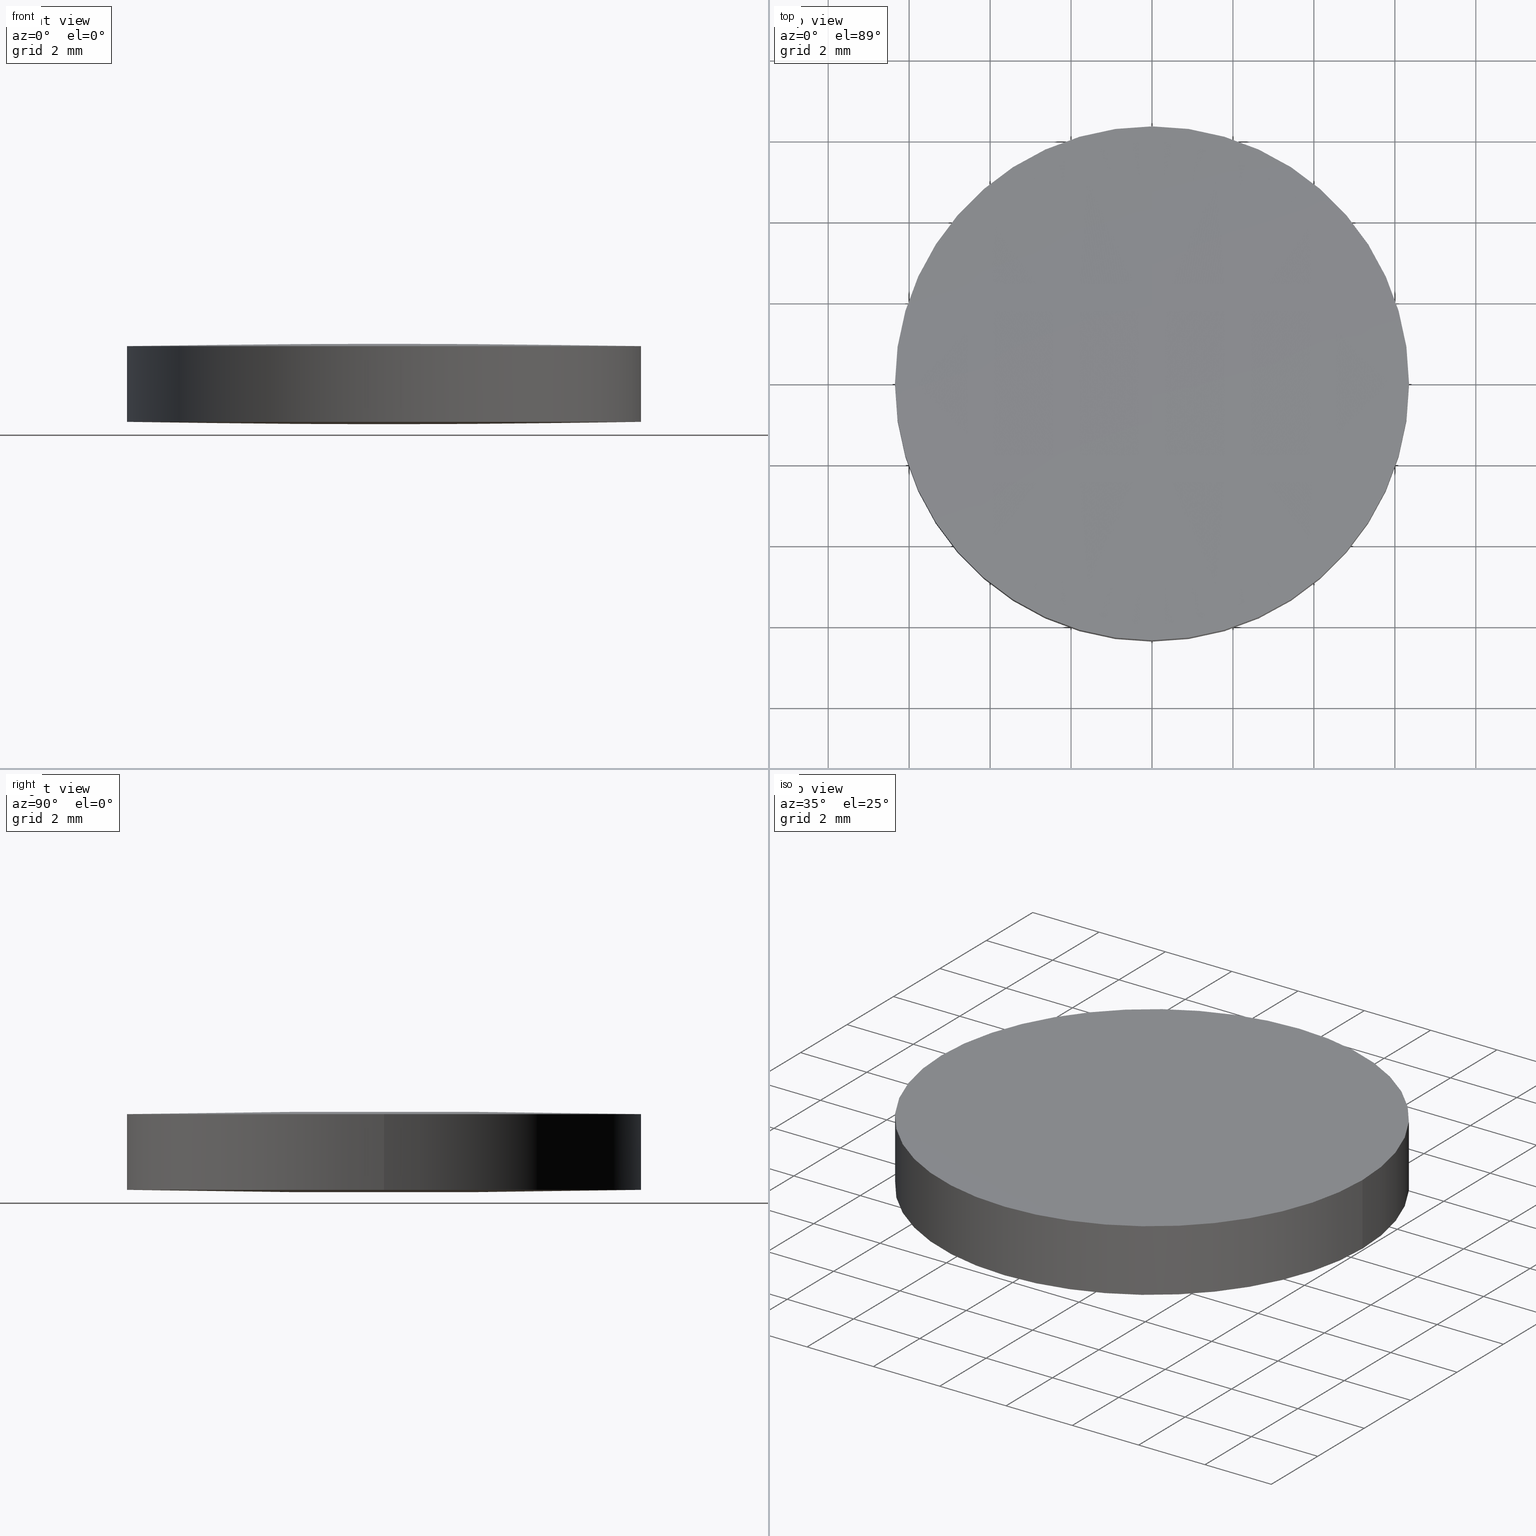
[diagram: canonical four-view strip — front | top / right | iso, engineering-drawing reading convention]
A machine part, canonical four-view strip (front | top / right | iso — engineering-drawing reading convention). The complete STEP part file that produces these views, byte-faithful:
ISO-10303-21;
HEADER;
FILE_DESCRIPTION (( 'STEP AP203' ),
    '1' );
FILE_NAME ('111-0144E BK7 bi-cx 12.7 F300.STEP',
    '2019-01-09T10:55:16',
    ( '' ),
    ( '' ),
    'SwSTEP 2.0',
    'SolidWorks 2017',
    '' );
FILE_SCHEMA (( 'CONFIG_CONTROL_DESIGN' ));
ENDSEC;

DATA;
#1 = PERSON_AND_ORGANIZATION_ROLE ( 'design_owner' ) ;
#2 = CARTESIAN_POINT ( 'NONE',  ( 6.388549635048288000, -2.142368200197927000, 1.956503322797152900 ) ) ;
#3 = DATE_TIME_ROLE ( 'classification_date' ) ;
#4 = EDGE_LOOP ( 'NONE', ( #237, #232, #241 ) ) ;
#5 = CARTESIAN_POINT ( 'NONE',  ( -6.386729902696654200, -6.426189210769681600, 1.867958086700777900 ) ) ;
#6 = ORIENTED_EDGE ( 'NONE', *, *, #123, .T. ) ;
#7 = DIRECTION ( 'NONE',  ( -0.0000000000000000000, -0.0000000000000000000, -1.000000000000000000 ) ) ;
#8 = CARTESIAN_POINT ( 'NONE',  ( 2.129097252843780400, -6.426189210769722500, 0.06642058453948315700 ) ) ;
#9 = DIRECTION ( 'NONE',  ( -0.0000000000000000000, -0.0000000000000000000, -1.000000000000000000 ) ) ;
#10 = CARTESIAN_POINT ( 'NONE',  ( 2.129097252843785300, 6.426189210769622100, 0.06642058453948315700 ) ) ;
#11 = AXIS2_PLACEMENT_3D ( 'NONE', #200, #34, #131 ) ;
#12 = PERSON_AND_ORGANIZATION ( #144, #65 ) ;
#13 = CARTESIAN_POINT ( 'NONE',  ( 2.498001805406600200E-016, 1.221245327087670000E-015, 0.06485478633533430000 ) ) ;
#14 = CARTESIAN_POINT ( 'NONE',  ( 2.498001805406600200E-016, 1.221245327087670000E-015, 0.06485478633533430000 ) ) ;
#15 = APPLICATION_PROTOCOL_DEFINITION ( 'international standard', 'config_control_design', 1994, #280 ) ;
#16 = ORIENTED_EDGE ( 'NONE', *, *, #143, .T. ) ;
#17 = CARTESIAN_POINT ( 'NONE',  ( 1.752070710736575200E-013, 6.426189210769665600, 1.933579415460536800 ) ) ;
#18 =( LENGTH_UNIT ( ) NAMED_UNIT ( * ) SI_UNIT ( .MILLI., .METRE. ) );
#19 = CARTESIAN_POINT ( 'NONE',  ( 4.259295361755651000, 2.142368200197918100, 2.000262570119200100 ) ) ;
#20 = LINE ( 'NONE', #110, #267 ) ;
#21 = SECURITY_CLASSIFICATION_LEVEL ( 'unclassified' ) ;
#22 = APPROVAL_PERSON_ORGANIZATION ( #201, #66, #95 ) ;
#23 = ORIENTED_EDGE ( 'NONE', *, *, #126, .F. ) ;
#24 = ADVANCED_FACE ( 'NONE', ( #59 ), #284, .T. ) ;
#25 = LOCAL_TIME ( 12, 55, 16.00000000000000000, #278 ) ;
#26 = ORIENTED_EDGE ( 'NONE', *, *, #68, .T. ) ;
#27 = CARTESIAN_POINT ( 'NONE',  ( 2.498001805406600200E-016, 1.221245327087670000E-015, 1.935145213664670100 ) ) ;
#28 = AXIS2_PLACEMENT_3D ( 'NONE', #132, #31, #199 ) ;
#29 = CARTESIAN_POINT ( 'NONE',  ( 2.498001805406600200E-016, 1.221245327087670000E-015, 0.06485478633533430000 ) ) ;
#30 = PERSON_AND_ORGANIZATION ( #144, #65 ) ;
#31 = DIRECTION ( 'NONE',  ( -0.0000000000000000000, -0.0000000000000000000, -1.000000000000000000 ) ) ;
#32 = CARTESIAN_POINT ( 'NONE',  ( 6.386729902696659500, 6.426189210769621200, 0.1320419132992240500 ) ) ;
#33 = CARTESIAN_POINT ( 'NONE',  ( 9.805510406251404500E-014, 6.350000000000327400, 1.935145213664669400 ) ) ;
#34 = DIRECTION ( 'NONE',  ( 1.000000000000000000, -3.738639560994800200E-016, -3.230945461933270100E-016 ) ) ;
#35 =( GEOMETRIC_REPRESENTATION_CONTEXT ( 3 ) GLOBAL_UNCERTAINTY_ASSIGNED_CONTEXT ( ( #162 ) ) GLOBAL_UNIT_ASSIGNED_CONTEXT ( ( #18, #209, #67 ) ) REPRESENTATION_CONTEXT ( 'NONE', 'WORKASPACE' ) );
#36 = CARTESIAN_POINT ( 'NONE',  ( -4.259295361755652800, -2.142368200197970900, -0.0002625701191974419600 ) ) ;
#37 = CYLINDRICAL_SURFACE ( 'NONE', #247, 6.349999999999999600 ) ;
#38 = CLOSED_SHELL ( 'NONE', ( #192, #24, #174, #286, #76, #219 ) ) ;
#39 = CARTESIAN_POINT ( 'NONE',  ( -6.388549635048286200, 2.142368200197876800, 0.04349667720284827000 ) ) ;
#40 = DIRECTION ( 'NONE',  ( 1.000000000000000000, 0.0000000000000000000, 0.0000000000000000000 ) ) ;
#41 = CARTESIAN_POINT ( 'NONE',  ( -2.129703883656574700, -2.142368200197971400, -0.02214334864553151400 ) ) ;
#42 = LOCAL_TIME ( 12, 55, 16.00000000000000000, #282 ) ;
#43 = APPROVAL_DATE_TIME ( #236, #118 ) ;
#44 = CARTESIAN_POINT ( 'NONE',  ( 4.258082132148490300, -6.426189210769677200, 1.911704869516373200 ) ) ;
#45 = PERSON_AND_ORGANIZATION_ROLE ( 'classification_officer' ) ;
#46 = PRODUCT_DEFINITION ( 'UNKNOWN', '', #293, #228 ) ;
#47 = ORIENTED_EDGE ( 'NONE', *, *, #216, .T. ) ;
#48 = CIRCLE ( 'NONE', #166, 6.349999999999999600 ) ;
#49 = AXIS2_PLACEMENT_3D ( 'NONE', #27, #134, #157 ) ;
#50 = ORIENTED_EDGE ( 'NONE', *, *, #103, .F. ) ;
#51 = CARTESIAN_POINT ( 'NONE',  ( -6.388549635048087300, 2.142368200197913600, 1.956503322797171500 ) ) ;
#52 = LOCAL_TIME ( 12, 55, 16.00000000000000000, #121 ) ;
#53 = DIRECTION ( 'NONE',  ( 0.0000000000000000000, 0.0000000000000000000, 1.000000000000000000 ) ) ;
#54 = ORIENTED_EDGE ( 'NONE', *, *, #123, .F. ) ;
#55 = CARTESIAN_POINT ( 'NONE',  ( 2.129703883656321600, -2.142368200197973600, -0.02214334864551471100 ) ) ;
#56 = DIRECTION ( 'NONE',  ( 1.000000000000000000, 8.881784197001252300E-016, 0.0000000000000000000 ) ) ;
#57 = DIRECTION ( 'NONE',  ( 0.0000000000000000000, 0.0000000000000000000, 1.000000000000000000 ) ) ;
#58 = CARTESIAN_POINT ( 'NONE',  ( 0.0000000000000000000, -5.684341886080800200E-014, -308.9000000000000300 ) ) ;
#59 = FACE_OUTER_BOUND ( 'NONE', #72, .T. ) ;
#60 = EDGE_CURVE ( 'NONE', #77, #148, #117, .T. ) ;
#61 = CARTESIAN_POINT ( 'NONE',  ( -9.805510406251405700E-014, 6.350000000000327400, 0.06485478633533377200 ) ) ;
#62 = CARTESIAN_POINT ( 'NONE',  ( 6.388549635048286200, 2.142368200197918500, 1.956503322797154200 ) ) ;
#63 = CARTESIAN_POINT ( 'NONE',  ( -1.760744328116458900E-013, 2.142368200197874600, -0.02214334864553297100 ) ) ;
#64 = CARTESIAN_POINT ( 'NONE',  ( 2.129097252844037900, -6.426189210769678100, 1.933579415460535500 ) ) ;
#65 = ORGANIZATION ( 'UNSPECIFIED', 'UNSPECIFIED', '' ) ;
#66 = APPROVAL ( #119, 'UNSPECIFIED' ) ;
#67 =( NAMED_UNIT ( * ) SI_UNIT ( $, .STERADIAN. ) SOLID_ANGLE_UNIT ( ) );
#68 = EDGE_CURVE ( 'NONE', #257, #101, #226, .T. ) ;
#69 = VERTEX_POINT ( 'NONE', #227 ) ;
#70 = APPROVAL ( #188, 'UNSPECIFIED' ) ;
#71 = DATE_AND_TIME ( #266, #25 ) ;
#72 = EDGE_LOOP ( 'NONE', ( #73, #254, #50 ) ) ;
#73 = ORIENTED_EDGE ( 'NONE', *, *, #143, .F. ) ;
#74 = AXIS2_PLACEMENT_3D ( 'NONE', #291, #9, #56 ) ;
#75 = EDGE_CURVE ( 'NONE', #148, #69, #172, .T. ) ;
#76 = ADVANCED_FACE ( 'NONE', ( #89 ), #37, .T. ) ;
#77 = VERTEX_POINT ( 'NONE', #33 ) ;
#78 = CC_DESIGN_SECURITY_CLASSIFICATION ( #204, ( #293 ) ) ;
#79 = CARTESIAN_POINT ( 'NONE',  ( 2.498001805406600200E-016, 1.221245327087670000E-015, 1.935145213664670100 ) ) ;
#80 = CARTESIAN_POINT ( 'NONE',  ( 2.498001805406600200E-016, 1.221245327087670000E-015, 1.935145213664670100 ) ) ;
#81 = EDGE_CURVE ( 'NONE', #257, #290, #135, .T. ) ;
#82 = DIRECTION ( 'NONE',  ( 1.000000000000000000, 0.0000000000000000000, 0.0000000000000000000 ) ) ;
#83 = CC_DESIGN_PERSON_AND_ORGANIZATION_ASSIGNMENT ( #94, #242, ( #46 ) ) ;
#84 = DIRECTION ( 'NONE',  ( 0.0000000000000000000, 0.0000000000000000000, 1.000000000000000000 ) ) ;
#85 = DATE_AND_TIME ( #146, #42 ) ;
#86 = EDGE_LOOP ( 'NONE', ( #180, #159, #125 ) ) ;
#87 = CARTESIAN_POINT ( 'NONE',  ( -4.258082132148490300, -6.426189210769719800, 0.08829513048362869200 ) ) ;
#88 = FACE_OUTER_BOUND ( 'NONE', #263, .T. ) ;
#89 = FACE_OUTER_BOUND ( 'NONE', #106, .T. ) ;
#90 = PRODUCT_RELATED_PRODUCT_CATEGORY ( 'detail', '', ( #238 ) ) ;
#91 = APPROVAL_STATUS ( 'not_yet_approved' ) ;
#92 = EDGE_CURVE ( 'NONE', #69, #77, #273, .T. ) ;
#93 = APPLICATION_CONTEXT ( 'configuration controlled 3d designs of mechanical parts and assemblies' ) ;
#94 = PERSON_AND_ORGANIZATION ( #144, #65 ) ;
#95 = APPROVAL_ROLE ( '' ) ;
#96 = APPROVAL_ROLE ( '' ) ;
#97 = PERSON_AND_ORGANIZATION ( #144, #65 ) ;
#98 = AXIS2_PLACEMENT_3D ( 'NONE', #80, #108, #274 ) ;
#99 = CARTESIAN_POINT ( 'NONE',  ( -4.259295361755425400, -2.142368200197931400, 2.000262570119215600 ) ) ;
#100 = CIRCLE ( 'NONE', #283, 6.349999999999999600 ) ;
#101 = VERTEX_POINT ( 'NONE', #61 ) ;
#102 = CARTESIAN_POINT ( 'NONE',  ( -2.129703883656322900, 2.142368200197915400, 2.022143348645517600 ) ) ;
#103 = EDGE_CURVE ( 'NONE', #290, #77, #48, .T. ) ;
#104 = DIRECTION ( 'NONE',  ( -0.0000000000000000000, -0.0000000000000000000, -1.000000000000000000 ) ) ;
#105 = PERSON_AND_ORGANIZATION ( #144, #65 ) ;
#106 = EDGE_LOOP ( 'NONE', ( #164, #154, #173, #6, #196, #16 ) ) ;
#107 = CARTESIAN_POINT ( 'NONE',  ( 6.386729902696655100, -6.426189210769724300, 0.1320419132992240500 ) ) ;
#108 = DIRECTION ( 'NONE',  ( -0.0000000000000000000, -0.0000000000000000000, -1.000000000000000000 ) ) ;
#109 = CARTESIAN_POINT ( 'NONE',  ( -1.012582030574349200E-013, -2.142368200197972300, -0.02214334864551402400 ) ) ;
#110 = CARTESIAN_POINT ( 'NONE',  ( 6.349999999999999600, 1.221245327087670000E-015, 0.06485478633533430000 ) ) ;
#111 = CIRCLE ( 'NONE', #49, 6.349999999999999600 ) ;
#112 = CARTESIAN_POINT ( 'NONE',  ( -1.778091562876227300E-013, -2.142368200197971800, -0.02214334864553272800 ) ) ;
#113 = DIRECTION ( 'NONE',  ( 1.000000000000000000, 0.0000000000000000000, 0.0000000000000000000 ) ) ;
#114 = CARTESIAN_POINT ( 'NONE',  ( -6.349999999999999600, 1.998896044546239400E-015, 0.06485478633533430000 ) ) ;
#115 = AXIS2_PLACEMENT_3D ( 'NONE', #58, #176, #289 ) ;
#116 = CARTESIAN_POINT ( 'NONE',  ( -6.349999999999999600, 1.998896044546239400E-015, 1.935145213664670100 ) ) ;
#117 = CIRCLE ( 'NONE', #98, 6.349999999999999600 ) ;
#118 = APPROVAL ( #91, 'UNSPECIFIED' ) ;
#119 = APPROVAL_STATUS ( 'not_yet_approved' ) ;
#120 = PERSON_AND_ORGANIZATION ( #144, #65 ) ;
#121 = COORDINATED_UNIVERSAL_TIME_OFFSET ( 2, 0, .AHEAD. ) ;
#122 = ORIENTED_EDGE ( 'NONE', *, *, #103, .T. ) ;
#123 = EDGE_CURVE ( 'NONE', #294, #148, #20, .T. ) ;
#124 = CC_DESIGN_PERSON_AND_ORGANIZATION_ASSIGNMENT ( #120, #240, ( #293 ) ) ;
#125 = ORIENTED_EDGE ( 'NONE', *, *, #60, .F. ) ;
#126 = EDGE_CURVE ( 'NONE', #101, #294, #150, .T. ) ;
#127 = ADVANCED_BREP_SHAPE_REPRESENTATION ( '111-0144E BK7 bi-cx 12.7 F300', ( #141, #210 ), #35 ) ;
#128 = CARTESIAN_POINT ( 'NONE',  ( -6.388549635048085500, -2.142368200197931800, 1.956503322797170200 ) ) ;
#129 = CIRCLE ( 'NONE', #272, 6.349999999999999600 ) ;
#130 = CARTESIAN_POINT ( 'NONE',  ( 1.012582030574349000E-013, -2.142368200197929600, 2.022143348645515800 ) ) ;
#131 = DIRECTION ( 'NONE',  ( -3.738639560994798700E-016, -1.000000000000000000, 3.570997184384549400E-016 ) ) ;
#132 = CARTESIAN_POINT ( 'NONE',  ( 2.498001805406600200E-016, 1.221245327087670000E-015, 1.935145213664670100 ) ) ;
#133 = CARTESIAN_POINT ( 'NONE',  ( 6.388549635048088100, 2.142368200197871900, 0.04349667720283109000 ) ) ;
#134 = DIRECTION ( 'NONE',  ( -0.0000000000000000000, -0.0000000000000000000, -1.000000000000000000 ) ) ;
#135 = LINE ( 'NONE', #252, #218 ) ;
#136 = DIRECTION ( 'NONE',  ( 1.000000000000000000, -1.776356839400250500E-015, 0.0000000000000000000 ) ) ;
#137 = CARTESIAN_POINT ( 'NONE',  ( -2.129703883656572900, 2.142368200197875900, -0.02214334864553175700 ) ) ;
#138 = CC_DESIGN_APPROVAL ( #66, ( #204 ) ) ;
#139 = CC_DESIGN_PERSON_AND_ORGANIZATION_ASSIGNMENT ( #12, #45, ( #204 ) ) ;
#140 = MECHANICAL_CONTEXT ( 'NONE', #280, 'mechanical' ) ;
#141 = MANIFOLD_SOLID_BREP ( 'Imported1', #38 ) ;
#142 = CARTESIAN_POINT ( 'NONE',  ( 6.386729902696855800, 6.426189210769668300, 1.867958086700760600 ) ) ;
#143 = EDGE_CURVE ( 'NONE', #69, #290, #111, .T. ) ;
#144 = PERSON ( 'UNSPECIFIED', 'UNSPECIFIED', 'UNSPECIFIED', ('UNSPECIFIED'), ('UNSPECIFIED'), ('UNSPECIFIED') ) ;
#145 = CARTESIAN_POINT ( 'NONE',  ( 2.129097252844032600, 6.426189210769665600, 1.933579415460535500 ) ) ;
#146 = CALENDAR_DATE ( 2019, 9, 1 ) ;
#147 =( BOUNDED_SURFACE ( )  B_SPLINE_SURFACE ( 3, 3, ( 
 ( #269, #8, #205, #107 ),
 ( #109, #55, #225, #178 ),
 ( #251, #270, #229, #133 ),
 ( #292, #10, #177, #32 ) ),
 .UNSPECIFIED., .F., .F., .F. ) 
 B_SPLINE_SURFACE_WITH_KNOTS ( ( 4, 4 ),
 ( 4, 4 ),
 ( 0.0000000000000000000, 1.000000000000000000 ),
 ( 0.0000000000000000000, 1.000000000000000000 ),
 .UNSPECIFIED. ) 
 GEOMETRIC_REPRESENTATION_ITEM ( )  RATIONAL_B_SPLINE_SURFACE ( (
 ( 1.000000000000000000, 0.9999648134002164800, 0.9999648134002164800, 1.000000000000000000),
 ( 0.9998575735294530400, 0.9998223919411727300, 0.9998223919411727300, 0.9998575735294530400),
 ( 0.9998575735294530400, 0.9998223919411727300, 0.9998223919411727300, 0.9998575735294530400),
 ( 1.000000000000000000, 0.9999648134002164800, 0.9999648134002164800, 1.000000000000000000) ) ) 
 REPRESENTATION_ITEM ( '' )  SURFACE ( )  );
#148 = VERTEX_POINT ( 'NONE', #179 ) ;
#149 = CC_DESIGN_PERSON_AND_ORGANIZATION_ASSIGNMENT ( #212, #1, ( #238 ) ) ;
#150 = CIRCLE ( 'NONE', #287, 6.349999999999999600 ) ;
#151 = CARTESIAN_POINT ( 'NONE',  ( 1.028311548038678000E-013, -6.426189210769679000, 1.933579415460517900 ) ) ;
#152 = CC_DESIGN_DATE_AND_TIME_ASSIGNMENT ( #71, #262, ( #46 ) ) ;
#153 = CALENDAR_DATE ( 2019, 9, 1 ) ;
#154 = ORIENTED_EDGE ( 'NONE', *, *, #216, .F. ) ;
#155 = CARTESIAN_POINT ( 'NONE',  ( -6.386729902696659500, 6.426189210769663000, 1.867958086700777900 ) ) ;
#156 = CC_DESIGN_DATE_AND_TIME_ASSIGNMENT ( #85, #3, ( #204 ) ) ;
#157 = DIRECTION ( 'NONE',  ( 1.000000000000000000, 0.0000000000000000000, 0.0000000000000000000 ) ) ;
#158 = EDGE_CURVE ( 'NONE', #189, #101, #193, .T. ) ;
#159 = ORIENTED_EDGE ( 'NONE', *, *, #75, .F. ) ;
#160 = CARTESIAN_POINT ( 'NONE',  ( -2.129097252844037100, -6.426189210769720700, 0.06642058453946635100 ) ) ;
#161 = CARTESIAN_POINT ( 'NONE',  ( 1.760744328116458900E-013, 2.142368200197916300, 2.022143348645535800 ) ) ;
#162 = UNCERTAINTY_MEASURE_WITH_UNIT (LENGTH_MEASURE( 1.000000000000000100E-005 ), #18, 'distance_accuracy_value', 'NONE');
#163 = APPLICATION_PROTOCOL_DEFINITION ( 'international standard', 'config_control_design', 1994, #93 ) ;
#164 = ORIENTED_EDGE ( 'NONE', *, *, #81, .F. ) ;
#165 = CC_DESIGN_PERSON_AND_ORGANIZATION_ASSIGNMENT ( #105, #261, ( #293 ) ) ;
#166 = AXIS2_PLACEMENT_3D ( 'NONE', #79, #276, #197 ) ;
#167 =( BOUNDED_SURFACE ( )  B_SPLINE_SURFACE ( 3, 3, ( 
 ( #277, #87, #160, #259 ),
 ( #183, #36, #41, #112 ),
 ( #39, #235, #137, #63 ),
 ( #208, #182, #187, #258 ) ),
 .UNSPECIFIED., .F., .F., .F. ) 
 B_SPLINE_SURFACE_WITH_KNOTS ( ( 4, 4 ),
 ( 4, 4 ),
 ( 0.0000000000000000000, 1.000000000000000000 ),
 ( 0.0000000000000000000, 1.000000000000000000 ),
 .UNSPECIFIED. ) 
 GEOMETRIC_REPRESENTATION_ITEM ( )  RATIONAL_B_SPLINE_SURFACE ( (
 ( 1.000000000000000000, 0.9999648134002164800, 0.9999648134002164800, 1.000000000000000000),
 ( 0.9998575735294530400, 0.9998223919411727300, 0.9998223919411727300, 0.9998575735294530400),
 ( 0.9998575735294530400, 0.9998223919411727300, 0.9998223919411727300, 0.9998575735294530400),
 ( 1.000000000000000000, 0.9999648134002164800, 0.9999648134002164800, 1.000000000000000000) ) ) 
 REPRESENTATION_ITEM ( '' )  SURFACE ( )  );
#168 = APPROVAL_DATE_TIME ( #175, #70 ) ;
#169 = CC_DESIGN_APPROVAL ( #118, ( #46 ) ) ;
#170 =( BOUNDED_SURFACE ( )  B_SPLINE_SURFACE ( 3, 3, ( 
 ( #203, #44, #64, #207 ),
 ( #2, #279, #211, #234 ),
 ( #62, #19, #239, #161 ),
 ( #142, #260, #145, #17 ) ),
 .UNSPECIFIED., .F., .F., .T. ) 
 B_SPLINE_SURFACE_WITH_KNOTS ( ( 4, 4 ),
 ( 4, 4 ),
 ( 0.0000000000000000000, 1.000000000000000000 ),
 ( 0.0000000000000000000, 1.000000000000000000 ),
 .UNSPECIFIED. ) 
 GEOMETRIC_REPRESENTATION_ITEM ( )  RATIONAL_B_SPLINE_SURFACE ( (
 ( 1.000000000000000000, 0.9999648134002164800, 0.9999648134002164800, 1.000000000000000000),
 ( 0.9998575735294530400, 0.9998223919411727300, 0.9998223919411727300, 0.9998575735294530400),
 ( 0.9998575735294530400, 0.9998223919411727300, 0.9998223919411727300, 0.9998575735294530400),
 ( 1.000000000000000000, 0.9999648134002164800, 0.9999648134002164800, 1.000000000000000000) ) ) 
 REPRESENTATION_ITEM ( '' )  SURFACE ( )  );
#171 = SHAPE_DEFINITION_REPRESENTATION ( #198, #127 ) ;
#172 = CIRCLE ( 'NONE', #28, 6.349999999999999600 ) ;
#173 = ORIENTED_EDGE ( 'NONE', *, *, #190, .F. ) ;
#174 = ADVANCED_FACE ( 'NONE', ( #213 ), #202, .T. ) ;
#175 = DATE_AND_TIME ( #153, #195 ) ;
#176 = DIRECTION ( 'NONE',  ( -1.000000000000000000, -3.738639560994800200E-016, 3.230945461933270100E-016 ) ) ;
#177 = CARTESIAN_POINT ( 'NONE',  ( 4.258082132148264700, 6.426189210769621200, 0.08829513048361237200 ) ) ;
#178 = CARTESIAN_POINT ( 'NONE',  ( 6.388549635048086400, -2.142368200197974500, 0.04349667720283131900 ) ) ;
#179 = CARTESIAN_POINT ( 'NONE',  ( 6.349999999999999600, 1.221245327087670000E-015, 1.935145213664670100 ) ) ;
#180 = ORIENTED_EDGE ( 'NONE', *, *, #92, .F. ) ;
#181 = ORIENTED_EDGE ( 'NONE', *, *, #158, .F. ) ;
#182 = CARTESIAN_POINT ( 'NONE',  ( -4.258082132148485900, 6.426189210769624800, 0.08829513048362869200 ) ) ;
#183 = CARTESIAN_POINT ( 'NONE',  ( -6.388549635048288000, -2.142368200197969600, 0.04349667720284848500 ) ) ;
#184 = COORDINATED_UNIVERSAL_TIME_OFFSET ( 2, 0, .AHEAD. ) ;
#185 = ORIENTED_EDGE ( 'NONE', *, *, #68, .F. ) ;
#186 = CARTESIAN_POINT ( 'NONE',  ( 2.498001805406600200E-016, 1.221245327087670000E-015, 0.06485478633533430000 ) ) ;
#187 = CARTESIAN_POINT ( 'NONE',  ( -2.129097252844031700, 6.426189210769623900, 0.06642058453946633700 ) ) ;
#188 = APPROVAL_STATUS ( 'not_yet_approved' ) ;
#189 = VERTEX_POINT ( 'NONE', #275 ) ;
#190 = EDGE_CURVE ( 'NONE', #294, #189, #100, .T. ) ;
#191 = APPROVAL_ROLE ( '' ) ;
#192 = ADVANCED_FACE ( 'NONE', ( #231 ), #147, .T. ) ;
#193 = CIRCLE ( 'NONE', #11, 310.9000000000000300 ) ;
#194 = CARTESIAN_POINT ( 'NONE',  ( 9.802611376190352000E-014, 6.426189210769665600, 1.933579415460517900 ) ) ;
#195 = LOCAL_TIME ( 12, 55, 16.00000000000000000, #184 ) ;
#196 = ORIENTED_EDGE ( 'NONE', *, *, #75, .T. ) ;
#197 = DIRECTION ( 'NONE',  ( 1.000000000000000000, 0.0000000000000000000, 0.0000000000000000000 ) ) ;
#198 = PRODUCT_DEFINITION_SHAPE ( 'NONE', 'NONE',  #46 ) ;
#199 = DIRECTION ( 'NONE',  ( 1.000000000000000000, 0.0000000000000000000, 0.0000000000000000000 ) ) ;
#200 = CARTESIAN_POINT ( 'NONE',  ( 0.0000000000000000000, -5.684341886080800200E-014, 310.9000000000000300 ) ) ;
#201 = PERSON_AND_ORGANIZATION ( #144, #65 ) ;
#202 = CYLINDRICAL_SURFACE ( 'NONE', #265, 6.349999999999999600 ) ;
#203 = CARTESIAN_POINT ( 'NONE',  ( 6.386729902696860300, -6.426189210769676300, 1.867958086700760600 ) ) ;
#204 = SECURITY_CLASSIFICATION ( '', '', #21 ) ;
#205 = CARTESIAN_POINT ( 'NONE',  ( 4.258082132148259400, -6.426189210769723400, 0.08829513048361237200 ) ) ;
#206 = COORDINATED_UNIVERSAL_TIME_OFFSET ( 2, 0, .AHEAD. ) ;
#207 = CARTESIAN_POINT ( 'NONE',  ( 1.804112415015879400E-013, -6.426189210769679000, 1.933579415460536800 ) ) ;
#208 = CARTESIAN_POINT ( 'NONE',  ( -6.386729902696855800, 6.426189210769626600, 0.1320419132992412000 ) ) ;
#209 =( NAMED_UNIT ( * ) PLANE_ANGLE_UNIT ( ) SI_UNIT ( $, .RADIAN. ) );
#210 = AXIS2_PLACEMENT_3D ( 'NONE', #233, #84, #113 ) ;
#211 = CARTESIAN_POINT ( 'NONE',  ( 2.129703883656574700, -2.142368200197928700, 2.022143348645532700 ) ) ;
#212 = PERSON_AND_ORGANIZATION ( #144, #65 ) ;
#213 = FACE_OUTER_BOUND ( 'NONE', #244, .T. ) ;
#214 = APPROVAL_PERSON_ORGANIZATION ( #97, #70, #96 ) ;
#215 = CC_DESIGN_APPROVAL ( #70, ( #293 ) ) ;
#216 = EDGE_CURVE ( 'NONE', #189, #257, #129, .T. ) ;
#217 = DATE_AND_TIME ( #224, #256 ) ;
#218 = VECTOR ( 'NONE', #230, 1000.000000000000000 ) ;
#219 = ADVANCED_FACE ( 'NONE', ( #281 ), #170, .T. ) ;
#220 = CARTESIAN_POINT ( 'NONE',  ( -2.129703883656321600, -2.142368200197930900, 2.022143348645516300 ) ) ;
#221 = CARTESIAN_POINT ( 'NONE',  ( -4.258082132148264700, 6.426189210769663000, 1.911704869516389600 ) ) ;
#222 = CARTESIAN_POINT ( 'NONE',  ( -2.129097252843785300, 6.426189210769663900, 1.933579415460518600 ) ) ;
#223 = DIRECTION ( 'NONE',  ( 1.000000000000000000, 0.0000000000000000000, 0.0000000000000000000 ) ) ;
#224 = CALENDAR_DATE ( 2019, 9, 1 ) ;
#225 = CARTESIAN_POINT ( 'NONE',  ( 4.259295361755426300, -2.142368200197974000, -0.0002625701192137525300 ) ) ;
#226 = CIRCLE ( 'NONE', #74, 6.349999999999999600 ) ;
#227 = CARTESIAN_POINT ( 'NONE',  ( 1.028031763049777000E-013, -6.350000000000384200, 1.935145213664669400 ) ) ;
#228 = DESIGN_CONTEXT ( 'detailed design', #93, 'design' ) ;
#229 = CARTESIAN_POINT ( 'NONE',  ( 4.259295361755428100, 2.142368200197873200, -0.0002625701192139829300 ) ) ;
#230 = DIRECTION ( 'NONE',  ( 0.0000000000000000000, 0.0000000000000000000, 1.000000000000000000 ) ) ;
#231 = FACE_OUTER_BOUND ( 'NONE', #4, .T. ) ;
#232 = ORIENTED_EDGE ( 'NONE', *, *, #158, .T. ) ;
#233 = CARTESIAN_POINT ( 'NONE',  ( 0.0000000000000000000, 0.0000000000000000000, 0.0000000000000000000 ) ) ;
#234 = CARTESIAN_POINT ( 'NONE',  ( 1.778091562876227300E-013, -2.142368200197929200, 2.022143348645534500 ) ) ;
#235 = CARTESIAN_POINT ( 'NONE',  ( -4.259295361755651000, 2.142368200197876300, -0.0002625701191976589100 ) ) ;
#236 = DATE_AND_TIME ( #288, #52 ) ;
#237 = ORIENTED_EDGE ( 'NONE', *, *, #190, .T. ) ;
#238 = PRODUCT ( '111-0144E BK7 bi-cx 12.7 F300', '111-0144E BK7 bi-cx 12.7 F300', '', ( #140 ) ) ;
#239 = CARTESIAN_POINT ( 'NONE',  ( 2.129703883656572900, 2.142368200197917600, 2.022143348645534000 ) ) ;
#240 = PERSON_AND_ORGANIZATION_ROLE ( 'creator' ) ;
#241 = ORIENTED_EDGE ( 'NONE', *, *, #126, .T. ) ;
#242 = PERSON_AND_ORGANIZATION_ROLE ( 'creator' ) ;
#243 = ORIENTED_EDGE ( 'NONE', *, *, #60, .T. ) ;
#244 = EDGE_LOOP ( 'NONE', ( #185, #264, #122, #243, #54, #23 ) ) ;
#245 = CARTESIAN_POINT ( 'NONE',  ( -4.258082132148259400, -6.426189210769680700, 1.911704869516389600 ) ) ;
#246 = CARTESIAN_POINT ( 'NONE',  ( -4.259295361755427200, 2.142368200197915000, 2.000262570119216500 ) ) ;
#247 = AXIS2_PLACEMENT_3D ( 'NONE', #13, #250, #253 ) ;
#248 = APPROVAL_PERSON_ORGANIZATION ( #30, #118, #191 ) ;
#249 = CARTESIAN_POINT ( 'NONE',  ( 2.498001805406600200E-016, 1.221245327087670000E-015, 0.06485478633533430000 ) ) ;
#250 = DIRECTION ( 'NONE',  ( 0.0000000000000000000, 0.0000000000000000000, 1.000000000000000000 ) ) ;
#251 = CARTESIAN_POINT ( 'NONE',  ( -9.965629455593948600E-014, 2.142368200197874100, -0.02214334864551425300 ) ) ;
#252 = CARTESIAN_POINT ( 'NONE',  ( -6.349999999999999600, 1.998896044546239400E-015, 0.06485478633533430000 ) ) ;
#253 = DIRECTION ( 'NONE',  ( 1.000000000000000000, 0.0000000000000000000, 0.0000000000000000000 ) ) ;
#254 = ORIENTED_EDGE ( 'NONE', *, *, #92, .T. ) ;
#255 = CARTESIAN_POINT ( 'NONE',  ( 6.349999999999999600, 1.221245327087670000E-015, 0.06485478633533430000 ) ) ;
#256 = LOCAL_TIME ( 12, 55, 16.00000000000000000, #206 ) ;
#257 = VERTEX_POINT ( 'NONE', #114 ) ;
#258 = CARTESIAN_POINT ( 'NONE',  ( -1.743397093356691100E-013, 6.426189210769623900, 0.06642058453946513000 ) ) ;
#259 = CARTESIAN_POINT ( 'NONE',  ( -1.795438797635995300E-013, -6.426189210769721600, 0.06642058453946513000 ) ) ;
#260 = CARTESIAN_POINT ( 'NONE',  ( 4.258082132148485900, 6.426189210769666500, 1.911704869516373200 ) ) ;
#261 = PERSON_AND_ORGANIZATION_ROLE ( 'design_supplier' ) ;
#262 = DATE_TIME_ROLE ( 'creation_date' ) ;
#263 = EDGE_LOOP ( 'NONE', ( #181, #47, #26 ) ) ;
#264 = ORIENTED_EDGE ( 'NONE', *, *, #81, .T. ) ;
#265 = AXIS2_PLACEMENT_3D ( 'NONE', #14, #53, #223 ) ;
#266 = CALENDAR_DATE ( 2019, 9, 1 ) ;
#267 = VECTOR ( 'NONE', #57, 1000.000000000000000 ) ;
#268 = CARTESIAN_POINT ( 'NONE',  ( 9.965629455593946100E-014, 2.142368200197915900, 2.022143348645517100 ) ) ;
#269 = CARTESIAN_POINT ( 'NONE',  ( -1.028311548038678300E-013, -6.426189210769721600, 0.06642058453948385100 ) ) ;
#270 = CARTESIAN_POINT ( 'NONE',  ( 2.129703883656322900, 2.142368200197873700, -0.02214334864551494400 ) ) ;
#271 = APPROVAL_DATE_TIME ( #217, #66 ) ;
#272 = AXIS2_PLACEMENT_3D ( 'NONE', #186, #295, #40 ) ;
#273 = CIRCLE ( 'NONE', #115, 310.9000000000000300 ) ;
#274 = DIRECTION ( 'NONE',  ( 1.000000000000000000, 0.0000000000000000000, 0.0000000000000000000 ) ) ;
#275 = CARTESIAN_POINT ( 'NONE',  ( -1.028031763049777000E-013, -6.350000000000383300, 0.06485478633533377200 ) ) ;
#276 = DIRECTION ( 'NONE',  ( -0.0000000000000000000, -0.0000000000000000000, -1.000000000000000000 ) ) ;
#277 = CARTESIAN_POINT ( 'NONE',  ( -6.386729902696860300, -6.426189210769718900, 0.1320419132992412000 ) ) ;
#278 = COORDINATED_UNIVERSAL_TIME_OFFSET ( 2, 0, .AHEAD. ) ;
#279 = CARTESIAN_POINT ( 'NONE',  ( 4.259295361755652800, -2.142368200197928300, 2.000262570119198700 ) ) ;
#280 = APPLICATION_CONTEXT ( 'configuration controlled 3d designs of mechanical parts and assemblies' ) ;
#281 = FACE_OUTER_BOUND ( 'NONE', #86, .T. ) ;
#282 = COORDINATED_UNIVERSAL_TIME_OFFSET ( 2, 0, .AHEAD. ) ;
#283 = AXIS2_PLACEMENT_3D ( 'NONE', #249, #104, #82 ) ;
#284 =( BOUNDED_SURFACE ( )  B_SPLINE_SURFACE ( 3, 3, ( 
 ( #151, #285, #245, #5 ),
 ( #130, #220, #99, #128 ),
 ( #268, #102, #246, #51 ),
 ( #194, #222, #221, #155 ) ),
 .UNSPECIFIED., .F., .F., .F. ) 
 B_SPLINE_SURFACE_WITH_KNOTS ( ( 4, 4 ),
 ( 4, 4 ),
 ( 0.0000000000000000000, 1.000000000000000000 ),
 ( 0.0000000000000000000, 1.000000000000000000 ),
 .UNSPECIFIED. ) 
 GEOMETRIC_REPRESENTATION_ITEM ( )  RATIONAL_B_SPLINE_SURFACE ( (
 ( 1.000000000000000000, 0.9999648134002164800, 0.9999648134002164800, 1.000000000000000000),
 ( 0.9998575735294530400, 0.9998223919411727300, 0.9998223919411727300, 0.9998575735294530400),
 ( 0.9998575735294530400, 0.9998223919411727300, 0.9998223919411727300, 0.9998575735294530400),
 ( 1.000000000000000000, 0.9999648134002164800, 0.9999648134002164800, 1.000000000000000000) ) ) 
 REPRESENTATION_ITEM ( '' )  SURFACE ( )  );
#285 = CARTESIAN_POINT ( 'NONE',  ( -2.129097252843780400, -6.426189210769679900, 1.933579415460518600 ) ) ;
#286 = ADVANCED_FACE ( 'NONE', ( #88 ), #167, .T. ) ;
#287 = AXIS2_PLACEMENT_3D ( 'NONE', #29, #7, #136 ) ;
#288 = CALENDAR_DATE ( 2019, 9, 1 ) ;
#289 = DIRECTION ( 'NONE',  ( 3.738639560994799200E-016, -1.000000000000000000, 0.0000000000000000000 ) ) ;
#290 = VERTEX_POINT ( 'NONE', #116 ) ;
#291 = CARTESIAN_POINT ( 'NONE',  ( 2.498001805406600200E-016, 1.221245327087670000E-015, 0.06485478633533430000 ) ) ;
#292 = CARTESIAN_POINT ( 'NONE',  ( -9.802611376190354600E-014, 6.426189210769623900, 0.06642058453948385100 ) ) ;
#293 = PRODUCT_DEFINITION_FORMATION_WITH_SPECIFIED_SOURCE ( 'ANY', '', #238, .NOT_KNOWN. ) ;
#294 = VERTEX_POINT ( 'NONE', #255 ) ;
#295 = DIRECTION ( 'NONE',  ( -0.0000000000000000000, -0.0000000000000000000, -1.000000000000000000 ) ) ;
ENDSEC;
END-ISO-10303-21;
